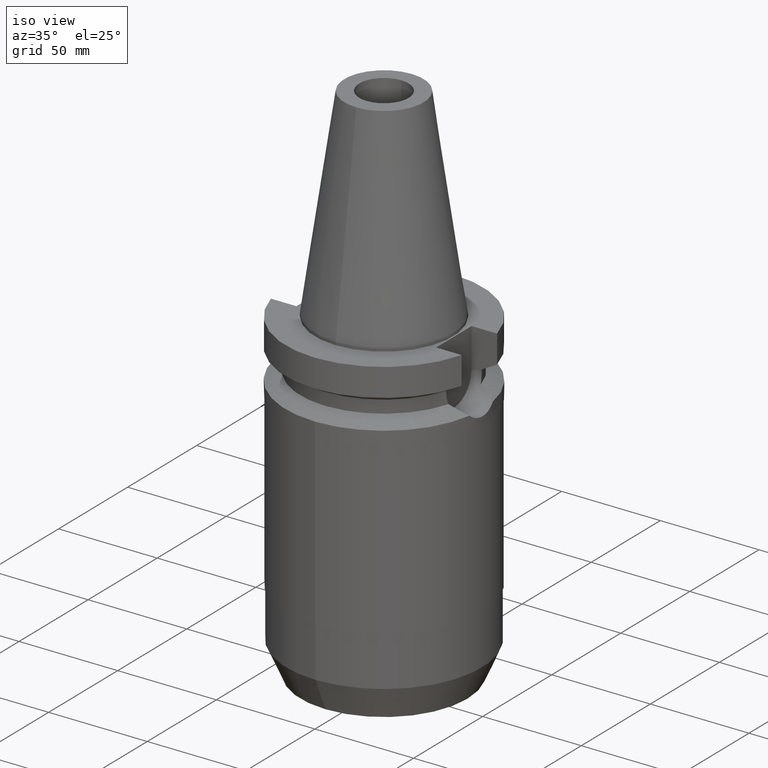
[diagram: clean part render]
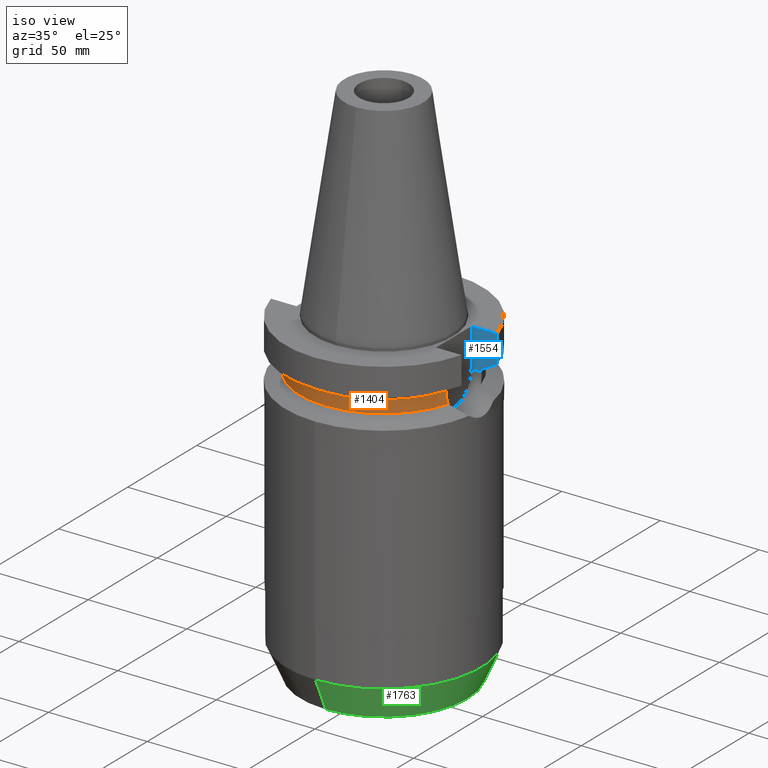
[diagram: same view with three faces highlighted in distinct colors, each labeled with its STEP entity id]
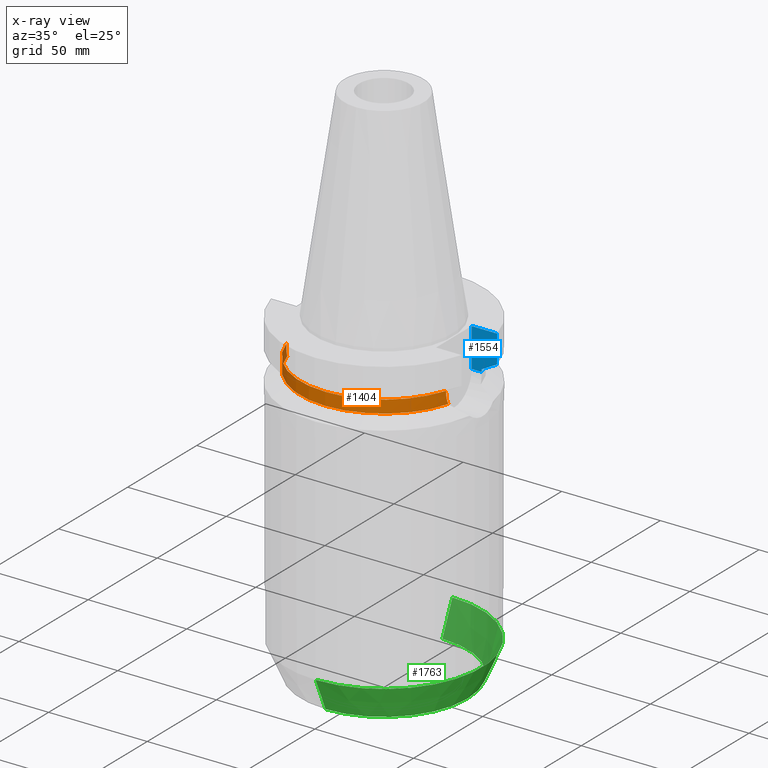
[diagram: x-ray of the same camera — body ghosted, the three highlighted faces saturated]
A machine part, iso view with three faces highlighted in distinct colors.
The next image is the same camera in x-ray (body ghosted, the three faces saturated) — at least one of them is partly hidden behind the body in this view.
Their STEP definitions:

[orange] entity #1404 — the highlighted cylindrical surface (partial cylindrical patch) has radius 42.5 mm, axis along (0, 0, 1).
#221=CARTESIAN_POINT('',(-4.085052569294E1,-1.172538061688E1,
-2.640718074535E1));
#222=CARTESIAN_POINT('',(-4.077854090860E1,-1.197617130576E1,
-2.584782841856E1));
#223=CARTESIAN_POINT('',(-4.065471957270E1,-1.239074148656E1,
-2.471132356357E1));
#224=CARTESIAN_POINT('',(-4.053738408807E1,-1.276675497079E1,
-2.294137753492E1));
#225=CARTESIAN_POINT('',(-4.051083188482E1,-1.285E1,-2.175072759487E1));
#226=CARTESIAN_POINT('',(-4.051083188482E1,-1.285E1,-2.115E1));
#231=DIRECTION('',(-9.391221930620E-7,2.960673418297E-6,9.999999999952E-1));
#232=VECTOR('',#231,1.157154457431E0);
#233=CARTESIAN_POINT('',(-4.051083188482E1,-1.285E1,-2.115E1));
#234=LINE('',#233,#232);
#238=DIRECTION('',(-9.396574420566E-7,-2.962360883996E-6,-9.999999999952E-1));
#239=VECTOR('',#238,1.157154442449E0);
#240=CARTESIAN_POINT('',(4.051083297215E1,-1.284999657209E1,-1.999284555756E1));
#241=LINE('',#240,#239);
#245=CARTESIAN_POINT('',(4.051083188482E1,-1.285E1,-2.115E1));
#246=CARTESIAN_POINT('',(4.051083188482E1,-1.285E1,-2.175073258017E1));
#247=CARTESIAN_POINT('',(4.053738277497E1,-1.276675938220E1,-2.294139035401E1));
#248=CARTESIAN_POINT('',(4.065473332855E1,-1.239069685654E1,-2.471148620312E1));
#249=CARTESIAN_POINT('',(4.077854934981E1,-1.197614189706E1,-2.584789401040E1));
#250=CARTESIAN_POINT('',(4.085052569294E1,-1.172538061688E1,-2.640718074535E1));
#300=CARTESIAN_POINT('',(0.E0,0.E0,-2.640718074535E1));
#301=DIRECTION('',(0.E0,0.E0,1.E0));
#302=DIRECTION('',(-9.611888398338E-1,-2.758913086325E-1,0.E0));
#303=AXIS2_PLACEMENT_3D('',#300,#301,#302);
#308=CARTESIAN_POINT('',(0.E0,0.E0,-2.640718074535E1));
#309=DIRECTION('',(0.E0,0.E0,1.E0));
#310=DIRECTION('',(0.E0,-1.E0,0.E0));
#311=AXIS2_PLACEMENT_3D('',#308,#309,#310);
#602=CARTESIAN_POINT('',(0.E0,0.E0,-1.999281925465E1));
#603=DIRECTION('',(0.E0,0.E0,-1.E0));
#604=DIRECTION('',(9.531960443487E-1,-3.023529411765E-1,0.E0));
#605=AXIS2_PLACEMENT_3D('',#602,#603,#604);
#610=CARTESIAN_POINT('',(0.E0,0.E0,-1.999281925465E1));
#611=DIRECTION('',(0.E0,0.E0,-1.E0));
#612=DIRECTION('',(0.E0,-1.E0,0.E0));
#613=AXIS2_PLACEMENT_3D('',#610,#611,#612);
#1092=CARTESIAN_POINT('',(-4.051083188482E1,-1.285E1,-2.115E1));
#1093=CARTESIAN_POINT('',(-4.051083297153E1,-1.284999657404E1,
-1.999284554257E1));
#1094=VERTEX_POINT('',#1092);
#1095=VERTEX_POINT('',#1093);
#1111=VERTEX_POINT('',#221);
#1112=CARTESIAN_POINT('',(4.051083188482E1,-1.285E1,-1.999281925465E1));
#1113=CARTESIAN_POINT('',(-4.263256414561E-14,-4.25E1,-1.999281925465E1));
#1114=VERTEX_POINT('',#1112);
#1115=VERTEX_POINT('',#1113);
#1116=CARTESIAN_POINT('',(4.051083188482E1,-1.285E1,-2.115E1));
#1117=VERTEX_POINT('',#1116);
#1118=VERTEX_POINT('',#250);
#1119=CARTESIAN_POINT('',(0.E0,-4.25E1,-2.640718074535E1));
#1120=VERTEX_POINT('',#1119);
#1382=CARTESIAN_POINT('',(0.E0,0.E0,-1.8044E2));
#1383=DIRECTION('',(0.E0,0.E0,1.E0));
#1384=DIRECTION('',(0.E0,1.E0,0.E0));
#1385=AXIS2_PLACEMENT_3D('',#1382,#1383,#1384);
#1386=CYLINDRICAL_SURFACE('',#1385,4.25E1);
#1388=ORIENTED_EDGE('',*,*,#1387,.T.);
#1389=ORIENTED_EDGE('',*,*,#1369,.T.);
#1391=ORIENTED_EDGE('',*,*,#1390,.F.);
#1393=ORIENTED_EDGE('',*,*,#1392,.F.);
#1395=ORIENTED_EDGE('',*,*,#1394,.T.);
#1397=ORIENTED_EDGE('',*,*,#1396,.T.);
#1399=ORIENTED_EDGE('',*,*,#1398,.F.);
#1401=ORIENTED_EDGE('',*,*,#1400,.F.);
#1402=EDGE_LOOP('',(#1388,#1389,#1391,#1393,#1395,#1397,#1399,#1401));
#1403=FACE_OUTER_BOUND('',#1402,.F.);
#227=B_SPLINE_CURVE_WITH_KNOTS('',3,(#221,#222,#223,#224,#225,#226),
.UNSPECIFIED.,.F.,.F.,(4,1,1,4),(0.E0,3.333333333333E-1,6.666666666667E-1,1.E0),
.UNSPECIFIED.);
#251=B_SPLINE_CURVE_WITH_KNOTS('',3,(#245,#246,#247,#248,#249,#250),
.UNSPECIFIED.,.F.,.F.,(4,1,1,4),(0.E0,3.333333333333E-1,6.666666666667E-1,1.E0),
.UNSPECIFIED.);
#304=CIRCLE('',#303,4.25E1);
#312=CIRCLE('',#311,4.25E1);
#606=CIRCLE('',#605,4.25E1);
#614=CIRCLE('',#613,4.25E1);
#1369=EDGE_CURVE('',#1094,#1095,#234,.T.);
#1387=EDGE_CURVE('',#1111,#1094,#227,.T.);
#1390=EDGE_CURVE('',#1115,#1095,#614,.T.);
#1392=EDGE_CURVE('',#1114,#1115,#606,.T.);
#1394=EDGE_CURVE('',#1114,#1117,#241,.T.);
#1396=EDGE_CURVE('',#1117,#1118,#251,.T.);
#1398=EDGE_CURVE('',#1120,#1118,#312,.T.);
#1400=EDGE_CURVE('',#1111,#1120,#304,.T.);
#1404=ADVANCED_FACE('',(#1403),#1386,.T.);

[blue] entity #1554 — the highlighted planar face has unit normal (0, 1, 0).
#349=DIRECTION('',(1.E0,-3.336643826790E-14,0.E0));
#350=VECTOR('',#349,5.110831884819E0);
#351=CARTESIAN_POINT('',(3.54E1,1.285E1,-2.115E1));
#352=LINE('',#351,#350);
#444=CARTESIAN_POINT('',(4.051083188482E1,1.285E1,-2.115E1));
#449=DIRECTION('',(9.391395831585E-7,-2.960728272016E-6,9.999999999952E-1));
#450=VECTOR('',#449,1.157154456944E0);
#451=CARTESIAN_POINT('',(4.051083188482E1,1.285E1,-2.115E1));
#452=LINE('',#451,#450);
#463=DIRECTION('',(1.E0,0.E0,0.E0));
#464=VECTOR('',#463,1.292057015392E1);
#465=CARTESIAN_POINT('',(3.54E1,1.285E1,-1.5E0));
#466=LINE('',#465,#464);
#477=DIRECTION('',(7.245862717098E-8,-2.724700318004E-7,1.E0));
#478=VECTOR('',#477,1.416265767241E1);
#479=CARTESIAN_POINT('',(4.832056912771E1,1.285000385890E1,-1.566265767241E1));
#480=LINE('',#479,#478);
#510=CARTESIAN_POINT('',(4.051083297155E1,1.284999657398E1,-1.999284554306E1));
#511=CARTESIAN_POINT('',(4.134252223593E1,1.284999657398E1,-1.953514362273E1));
#512=CARTESIAN_POINT('',(4.302980900541E1,1.285000211333E1,-1.860396297439E1));
#513=CARTESIAN_POINT('',(4.563297273222E1,1.284999774238E1,-1.716041470298E1));
#514=CARTESIAN_POINT('',(4.741661221763E1,1.285000385890E1,-1.616702752480E1));
#515=CARTESIAN_POINT('',(4.832056912771E1,1.285000385890E1,-1.566265767241E1));
#536=DIRECTION('',(0.E0,0.E0,-1.E0));
#537=VECTOR('',#536,1.965E1);
#538=CARTESIAN_POINT('',(3.54E1,1.285E1,-1.5E0));
#539=LINE('',#538,#537);
#1073=CARTESIAN_POINT('',(4.832057015392E1,1.285E1,-1.5E0));
#1075=VERTEX_POINT('',#1073);
#1076=CARTESIAN_POINT('',(3.54E1,1.285E1,-1.5E0));
#1077=VERTEX_POINT('',#1076);
#1104=VERTEX_POINT('',#444);
#1105=CARTESIAN_POINT('',(4.051083297155E1,1.284999657398E1,-1.999284554306E1));
#1106=VERTEX_POINT('',#1105);
#1138=CARTESIAN_POINT('',(3.54E1,1.285E1,-2.115E1));
#1139=VERTEX_POINT('',#1138);
#1141=CARTESIAN_POINT('',(4.832056912771E1,1.285000385890E1,-1.566265767241E1));
#1142=VERTEX_POINT('',#1141);
#1538=CARTESIAN_POINT('',(3.54E1,1.285E1,-2.115E1));
#1539=DIRECTION('',(0.E0,1.E0,0.E0));
#1540=DIRECTION('',(0.E0,0.E0,1.E0));
#1541=AXIS2_PLACEMENT_3D('',#1538,#1539,#1540);
#1542=PLANE('',#1541);
#1543=ORIENTED_EDGE('',*,*,#1328,.T.);
#1545=ORIENTED_EDGE('',*,*,#1544,.F.);
#1547=ORIENTED_EDGE('',*,*,#1546,.F.);
#1548=ORIENTED_EDGE('',*,*,#1527,.F.);
#1549=ORIENTED_EDGE('',*,*,#1477,.F.);
#1551=ORIENTED_EDGE('',*,*,#1550,.F.);
#1552=EDGE_LOOP('',(#1543,#1545,#1547,#1548,#1549,#1551));
#1553=FACE_OUTER_BOUND('',#1552,.F.);
#516=B_SPLINE_CURVE_WITH_KNOTS('',3,(#510,#511,#512,#513,#514,#515),
.UNSPECIFIED.,.F.,.F.,(4,1,1,4),(0.E0,3.333333333333E-1,6.666666666667E-1,1.E0),
.UNSPECIFIED.);
#1328=EDGE_CURVE('',#1077,#1075,#466,.T.);
#1477=EDGE_CURVE('',#1139,#1104,#352,.T.);
#1527=EDGE_CURVE('',#1104,#1106,#452,.T.);
#1544=EDGE_CURVE('',#1142,#1075,#480,.T.);
#1546=EDGE_CURVE('',#1106,#1142,#516,.T.);
#1550=EDGE_CURVE('',#1077,#1139,#539,.T.);
#1554=ADVANCED_FACE('',(#1553),#1542,.F.);

[green] entity #1763 — the highlighted conical surface has half-angle 24 deg.
#724=DIRECTION('',(0.E0,-4.067366430758E-1,-9.135454576426E-1));
#725=VECTOR('',#724,1.773310771180E1);
#726=CARTESIAN_POINT('',(0.E0,4.95E1,-1.493E2));
#727=LINE('',#726,#725);
#731=CARTESIAN_POINT('',(0.E0,0.E0,-1.493E2));
#732=DIRECTION('',(0.E0,0.E0,1.E0));
#733=DIRECTION('',(0.E0,-1.E0,0.E0));
#734=AXIS2_PLACEMENT_3D('',#731,#732,#733);
#747=DIRECTION('',(0.E0,4.067366430758E-1,-9.135454576426E-1));
#748=VECTOR('',#747,1.773310771180E1);
#749=CARTESIAN_POINT('',(0.E0,-4.95E1,-1.493E2));
#750=LINE('',#749,#748);
#754=CARTESIAN_POINT('',(0.E0,0.E0,-1.655E2));
#755=DIRECTION('',(0.E0,0.E0,1.E0));
#756=DIRECTION('',(0.E0,-1.E0,0.E0));
#757=AXIS2_PLACEMENT_3D('',#754,#755,#756);
#1161=CARTESIAN_POINT('',(0.E0,4.95E1,-1.493E2));
#1162=VERTEX_POINT('',#1161);
#1163=CARTESIAN_POINT('',(0.E0,-4.95E1,-1.493E2));
#1164=VERTEX_POINT('',#1163);
#1165=CARTESIAN_POINT('',(0.E0,4.228729529800E1,-1.655E2));
#1166=VERTEX_POINT('',#1165);
#1167=CARTESIAN_POINT('',(0.E0,-4.228729529800E1,-1.655E2));
#1168=VERTEX_POINT('',#1167);
#1749=CARTESIAN_POINT('',(0.E0,0.E0,-1.574E2));
#1750=DIRECTION('',(0.E0,0.E0,1.E0));
#1751=DIRECTION('',(0.E0,1.E0,0.E0));
#1752=AXIS2_PLACEMENT_3D('',#1749,#1750,#1751);
#1753=CONICAL_SURFACE('',#1752,4.589364764900E1,2.4E1);
#1755=ORIENTED_EDGE('',*,*,#1754,.T.);
#1757=ORIENTED_EDGE('',*,*,#1756,.F.);
#1759=ORIENTED_EDGE('',*,*,#1758,.F.);
#1760=ORIENTED_EDGE('',*,*,#1742,.T.);
#1761=EDGE_LOOP('',(#1755,#1757,#1759,#1760));
#1762=FACE_OUTER_BOUND('',#1761,.F.);
#735=CIRCLE('',#734,4.95E1);
#758=CIRCLE('',#757,4.228729529800E1);
#1742=EDGE_CURVE('',#1164,#1162,#735,.T.);
#1754=EDGE_CURVE('',#1162,#1166,#727,.T.);
#1756=EDGE_CURVE('',#1168,#1166,#758,.T.);
#1758=EDGE_CURVE('',#1164,#1168,#750,.T.);
#1763=ADVANCED_FACE('',(#1762),#1753,.T.);